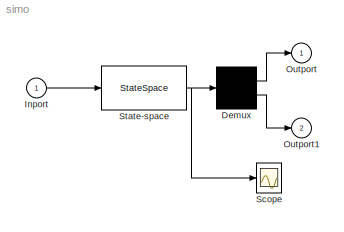
MODEL simo
KIND model
CONFIG AbsTol = 1e-6
CONFIG FixedStep = auto
CONFIG MaxStep = 10
CONFIG RelTol = 1e-3
CONFIG Solver = ode45
CONFIG StartTime = 0.0
CONFIG StopTime = 20
BLOCK [Demux] Demux
  Outputs = 2
  Ports = [1, 2, 0, 0, 0]
BLOCK [Inport] Inport
  Port = 1
  PortWidth = -1
  SampleTime = -1
BLOCK [Outport] Outport
  InitialOutput = 0
  OutputWhenDisabled = held
  Port = 1
BLOCK [Outport] Outport1
  InitialOutput = 0
  OutputWhenDisabled = held
  Port = 2
BLOCK [Scope] Scope
  Decimation = 1
  Floating = off
  Grid = on
  LimitMaxRows = on
  MaxRows = 5000
  Ports = [1, 0, 0, 0, 0]
  SampleInput = off
  SampleTime = 0
  SaveName = ScopeData
  SaveToWorkspace = off
  TickLabels = on
  TimeRange = 20
  YMax = 6
  YMin = -2
  ZoomMode = on
BLOCK [StateSpace] State-space
  A = [-0.3 0 0;2.9 -0.62,-2.3;0,2.3,0]
  B = [1;0;0]
  C = [1 1 0; 1 -3 1]
  D = [0;1]
  X0 = [1;1;1]
LINE Demux:1 -> Outport:1
LINE Demux:2 -> Outport1:1
LINE Inport:1 -> State-space:1
NET State-space:1 -> Demux:1, Scope:1
note: NET lines group one-source signal fan-out (src -> all destinations, sorted); 1:1 wires keep LINE
